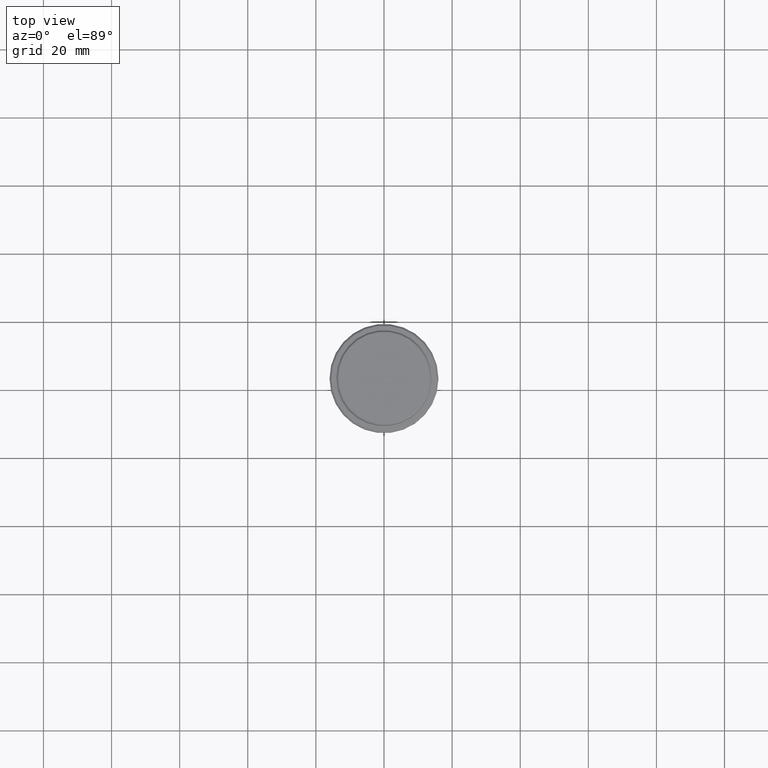
[diagram: clean part render]
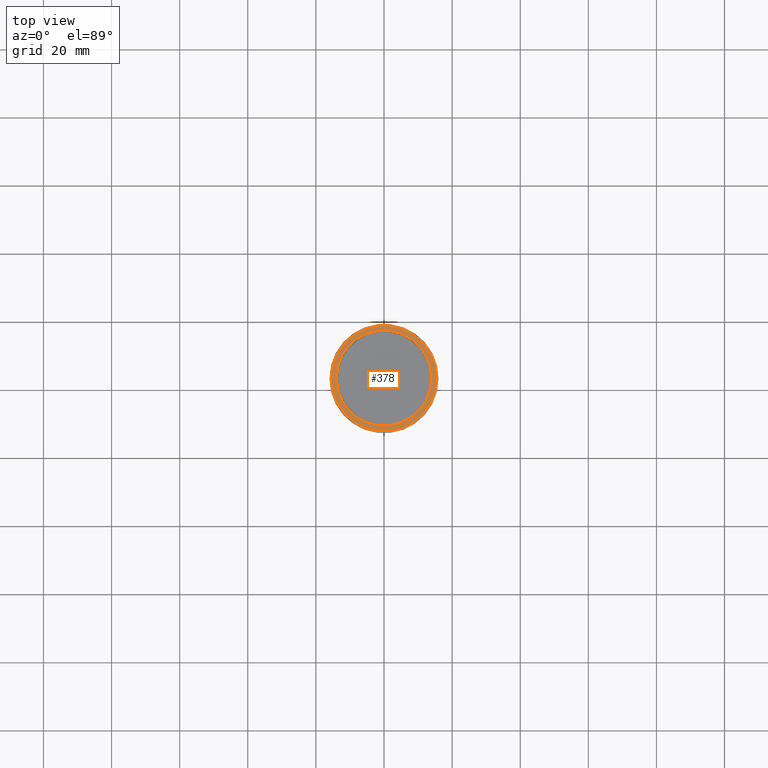
[diagram: same view with one face highlighted and labeled with its STEP entity id]
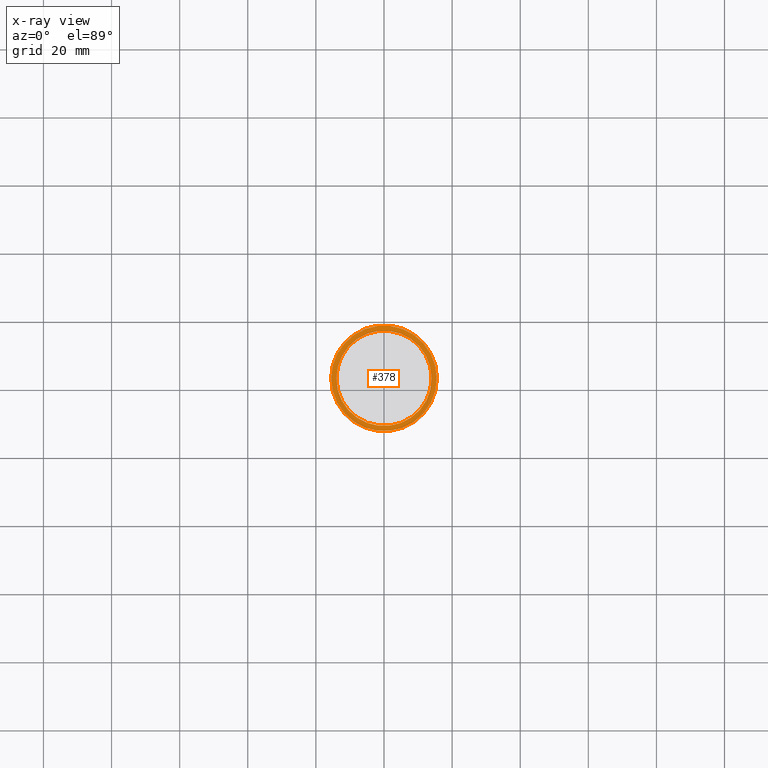
[diagram: x-ray of the same camera — body ghosted, the highlighted face saturated]
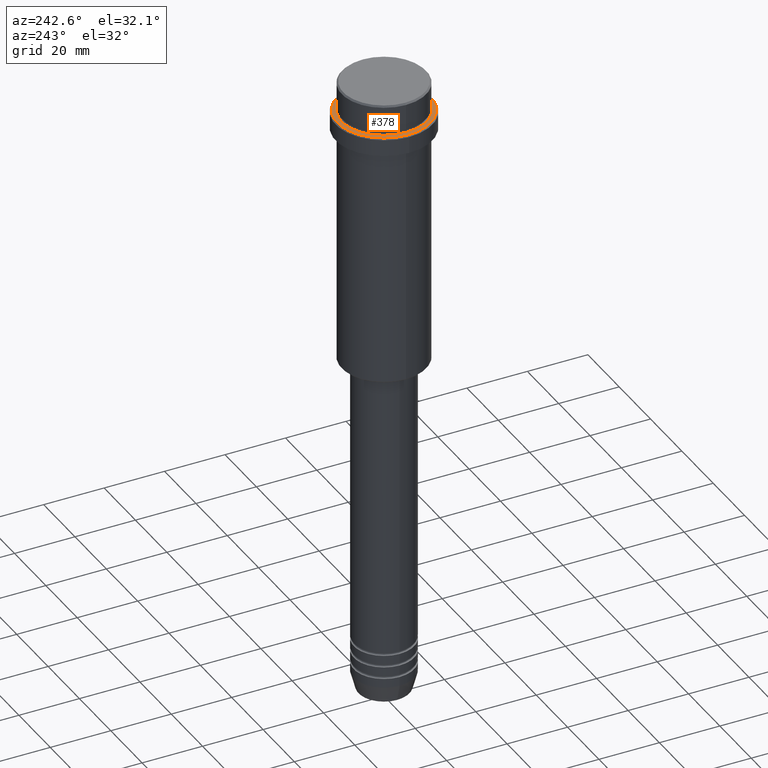
[diagram: same view with one face highlighted and labeled with its STEP entity id]
A machine part, top view. The second image highlights one B-rep face of the part: STEP entity #378.
The next image is the same camera in x-ray: the body ghosted, the highlighted face saturated — about 0% of this face is hidden behind the body in this view.
A second angle (auxiliary view) of the same face is appended — the face is thin or edge-on in the first view.
In plain terms, the highlighted planar face has unit normal (0, -0, 1).
Its self-contained STEP definition (entity closure, byte-faithful):
#7 = DIRECTION ( 'NONE',  ( 1.000000000000000000, 0.000000000000000000, 0.000000000000000000 ) ) ;
#29 = ORIENTED_EDGE ( 'NONE', *, *, #843, .T. ) ;
#46 = CARTESIAN_POINT ( 'NONE',  ( 15.49999999999995737, 1.928818708657077006E-15, -9.999999999999998224 ) ) ;
#72 = CARTESIAN_POINT ( 'NONE',  ( 0.000000000000000000, 0.000000000000000000, -9.999999999999998224 ) ) ;
#112 = DIRECTION ( 'NONE',  ( 0.000000000000000000, 0.000000000000000000, -1.000000000000000000 ) ) ;
#117 = FACE_OUTER_BOUND ( 'NONE', #666, .T. ) ;
#241 = FACE_BOUND ( 'NONE', #417, .T. ) ;
#316 = CARTESIAN_POINT ( 'NONE',  ( 0.000000000000000000, 0.000000000000000000, -9.999999999999998224 ) ) ;
#336 = EDGE_CURVE ( 'NONE', #353, #495, #390, .T. ) ;
#338 = CARTESIAN_POINT ( 'NONE',  ( 0.000000000000000000, 0.000000000000000000, -9.999999999999998224 ) ) ;
#353 = VERTEX_POINT ( 'NONE', #982 ) ;
#378 = ADVANCED_FACE ( 'NONE', ( #117, #241 ), #655, .T. ) ;
#390 = CIRCLE ( 'NONE', #1287, 13.99999999999996803 ) ;
#414 = CIRCLE ( 'NONE', #899, 13.99999999999996803 ) ;
#417 = EDGE_LOOP ( 'NONE', ( #989, #29 ) ) ;
#422 = DIRECTION ( 'NONE',  ( 0.000000000000000000, 0.000000000000000000, -1.000000000000000000 ) ) ;
#478 = EDGE_CURVE ( 'NONE', #1261, #526, #760, .T. ) ;
#486 = CIRCLE ( 'NONE', #1315, 15.49999999999995737 ) ;
#495 = VERTEX_POINT ( 'NONE', #1006 ) ;
#526 = VERTEX_POINT ( 'NONE', #700 ) ;
#552 = AXIS2_PLACEMENT_3D ( 'NONE', #794, #1101, #558 ) ;
#558 = DIRECTION ( 'NONE',  ( 1.000000000000000000, 0.000000000000000000, 0.000000000000000000 ) ) ;
#604 = DIRECTION ( 'NONE',  ( 1.000000000000000000, 0.000000000000000000, 0.000000000000000000 ) ) ;
#655 = PLANE ( 'NONE',  #552 ) ;
#666 = EDGE_LOOP ( 'NONE', ( #790, #798 ) ) ;
#700 = CARTESIAN_POINT ( 'NONE',  ( -15.49999999999995737, 0.000000000000000000, -9.999999999999998224 ) ) ;
#707 = DIRECTION ( 'NONE',  ( -0.000000000000000000, -0.000000000000000000, 1.000000000000000000 ) ) ;
#760 = CIRCLE ( 'NONE', #944, 15.49999999999995737 ) ;
#785 = DIRECTION ( 'NONE',  ( -0.000000000000000000, -0.000000000000000000, 1.000000000000000000 ) ) ;
#790 = ORIENTED_EDGE ( 'NONE', *, *, #1380, .T. ) ;
#794 = CARTESIAN_POINT ( 'NONE',  ( 0.000000000000000000, 13.49999999999996625, -9.999999999999998224 ) ) ;
#798 = ORIENTED_EDGE ( 'NONE', *, *, #478, .T. ) ;
#843 = EDGE_CURVE ( 'NONE', #495, #353, #414, .T. ) ;
#899 = AXIS2_PLACEMENT_3D ( 'NONE', #963, #112, #1077 ) ;
#944 = AXIS2_PLACEMENT_3D ( 'NONE', #338, #785, #7 ) ;
#963 = CARTESIAN_POINT ( 'NONE',  ( 0.000000000000000000, 0.000000000000000000, -9.999999999999998224 ) ) ;
#982 = CARTESIAN_POINT ( 'NONE',  ( 13.99999999999996803, 0.000000000000000000, -9.999999999999998224 ) ) ;
#989 = ORIENTED_EDGE ( 'NONE', *, *, #336, .T. ) ;
#1006 = CARTESIAN_POINT ( 'NONE',  ( -13.99999999999996803, 1.714505518806290694E-15, -9.999999999999998224 ) ) ;
#1077 = DIRECTION ( 'NONE',  ( 1.000000000000000000, 0.000000000000000000, 0.000000000000000000 ) ) ;
#1101 = DIRECTION ( 'NONE',  ( 0.000000000000000000, -0.000000000000000000, 1.000000000000000000 ) ) ;
#1203 = DIRECTION ( 'NONE',  ( 1.000000000000000000, 0.000000000000000000, 0.000000000000000000 ) ) ;
#1261 = VERTEX_POINT ( 'NONE', #46 ) ;
#1287 = AXIS2_PLACEMENT_3D ( 'NONE', #316, #422, #1203 ) ;
#1315 = AXIS2_PLACEMENT_3D ( 'NONE', #72, #707, #604 ) ;
#1380 = EDGE_CURVE ( 'NONE', #526, #1261, #486, .T. ) ;